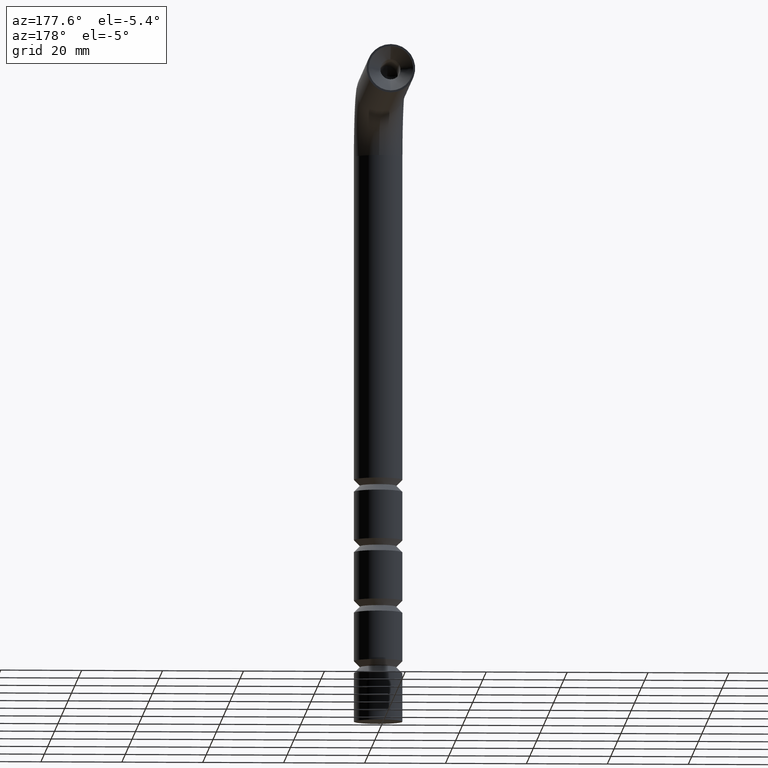
[diagram: clean part render]
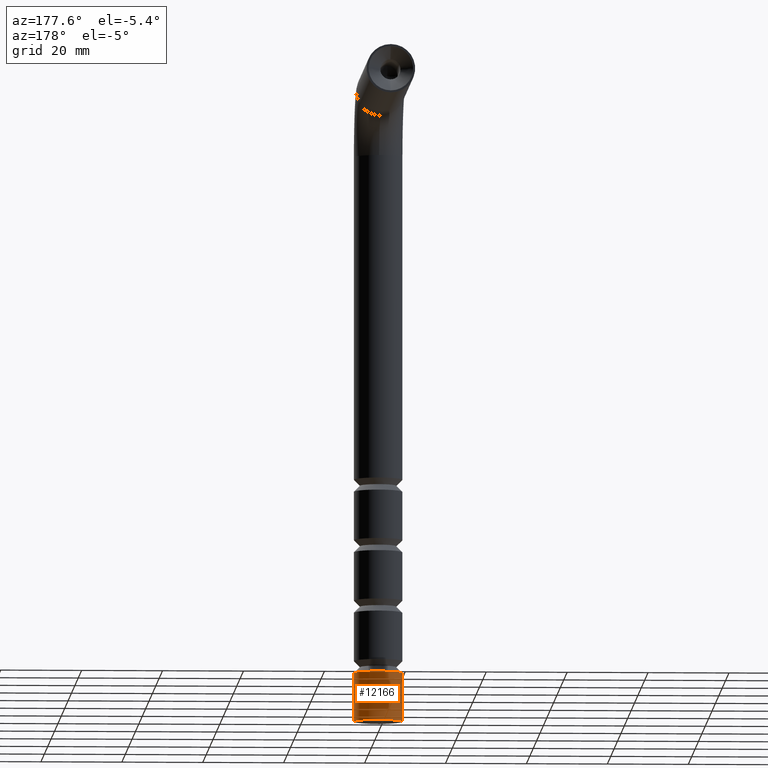
[diagram: same view with one face highlighted and labeled with its STEP entity id]
A machine part, auxiliary view. The second image highlights one B-rep face of the part: STEP entity #12166.
In plain terms, the highlighted cylindrical surface (edge-blend (fillet) strip) has radius 6 mm, axis along (0, 0, -1).
Its self-contained STEP definition (entity closure, byte-faithful):
#36 = CARTESIAN_POINT ( 'NONE',  ( -6.000000000000000888, 0.000000000000000000, 140.0000000000000000 ) ) ;
#649 = DIRECTION ( 'NONE',  ( -0.000000000000000000, -0.000000000000000000, -1.000000000000000000 ) ) ;
#734 = CIRCLE ( 'NONE', #6824, 6.000000000000000888 ) ;
#735 = VERTEX_POINT ( 'NONE', #12862 ) ;
#802 = CARTESIAN_POINT ( 'NONE',  ( 0.000000000000000000, 0.000000000000000000, 140.0000000000000000 ) ) ;
#1302 = CARTESIAN_POINT ( 'NONE',  ( 6.000000000000000000, 7.347880794884119736E-16, 12.00000000000000000 ) ) ;
#1450 = EDGE_CURVE ( 'NONE', #12314, #6644, #11991, .T. ) ;
#1981 = CARTESIAN_POINT ( 'NONE',  ( 0.000000000000000000, 0.000000000000000000, 0.000000000000000000 ) ) ;
#2413 = EDGE_CURVE ( 'NONE', #6644, #11358, #11826, .T. ) ;
#2559 = DIRECTION ( 'NONE',  ( -1.000000000000000000, 0.000000000000000000, 0.000000000000000000 ) ) ;
#3785 = ORIENTED_EDGE ( 'NONE', *, *, #2413, .T. ) ;
#3910 = AXIS2_PLACEMENT_3D ( 'NONE', #802, #11918, #5830 ) ;
#4621 = CYLINDRICAL_SURFACE ( 'NONE', #3910, 6.000000000000000888 ) ;
#4675 = CARTESIAN_POINT ( 'NONE',  ( 0.000000000000000000, 0.000000000000000000, 12.00000000000000000 ) ) ;
#5830 = DIRECTION ( 'NONE',  ( -1.000000000000000000, 0.000000000000000000, 0.000000000000000000 ) ) ;
#6424 = VECTOR ( 'NONE', #12795, 1000.000000000000000 ) ;
#6644 = VERTEX_POINT ( 'NONE', #1302 ) ;
#6705 = LINE ( 'NONE', #36, #9088 ) ;
#6824 = AXIS2_PLACEMENT_3D ( 'NONE', #1981, #8019, #7010 ) ;
#6957 = EDGE_LOOP ( 'NONE', ( #10106, #3785, #9296, #9346 ) ) ;
#7010 = DIRECTION ( 'NONE',  ( 1.000000000000000000, 0.000000000000000000, 0.000000000000000000 ) ) ;
#8019 = DIRECTION ( 'NONE',  ( 0.000000000000000000, 0.000000000000000000, 1.000000000000000000 ) ) ;
#8215 = DIRECTION ( 'NONE',  ( 0.000000000000000000, 0.000000000000000000, -1.000000000000000000 ) ) ;
#8471 = EDGE_CURVE ( 'NONE', #11358, #735, #734, .T. ) ;
#9088 = VECTOR ( 'NONE', #8215, 1000.000000000000000 ) ;
#9296 = ORIENTED_EDGE ( 'NONE', *, *, #8471, .T. ) ;
#9346 = ORIENTED_EDGE ( 'NONE', *, *, #10986, .F. ) ;
#10106 = ORIENTED_EDGE ( 'NONE', *, *, #1450, .T. ) ;
#10357 = FACE_OUTER_BOUND ( 'NONE', #6957, .T. ) ;
#10757 = CARTESIAN_POINT ( 'NONE',  ( 6.000000000000000888, 7.347880794884120722E-16, 0.000000000000000000 ) ) ;
#10986 = EDGE_CURVE ( 'NONE', #12314, #735, #6705, .T. ) ;
#11063 = AXIS2_PLACEMENT_3D ( 'NONE', #4675, #649, #2559 ) ;
#11278 = CARTESIAN_POINT ( 'NONE',  ( -6.000000000000000000, 0.000000000000000000, 12.00000000000000000 ) ) ;
#11358 = VERTEX_POINT ( 'NONE', #10757 ) ;
#11826 = LINE ( 'NONE', #11894, #6424 ) ;
#11894 = CARTESIAN_POINT ( 'NONE',  ( 6.000000000000000888, 7.347880794884120722E-16, 140.0000000000000000 ) ) ;
#11918 = DIRECTION ( 'NONE',  ( 0.000000000000000000, 0.000000000000000000, -1.000000000000000000 ) ) ;
#11991 = CIRCLE ( 'NONE', #11063, 6.000000000000000000 ) ;
#12166 = ADVANCED_FACE ( 'NONE', ( #10357 ), #4621, .T. ) ;
#12314 = VERTEX_POINT ( 'NONE', #11278 ) ;
#12795 = DIRECTION ( 'NONE',  ( 0.000000000000000000, 0.000000000000000000, -1.000000000000000000 ) ) ;
#12862 = CARTESIAN_POINT ( 'NONE',  ( -6.000000000000000888, 0.000000000000000000, 0.000000000000000000 ) ) ;